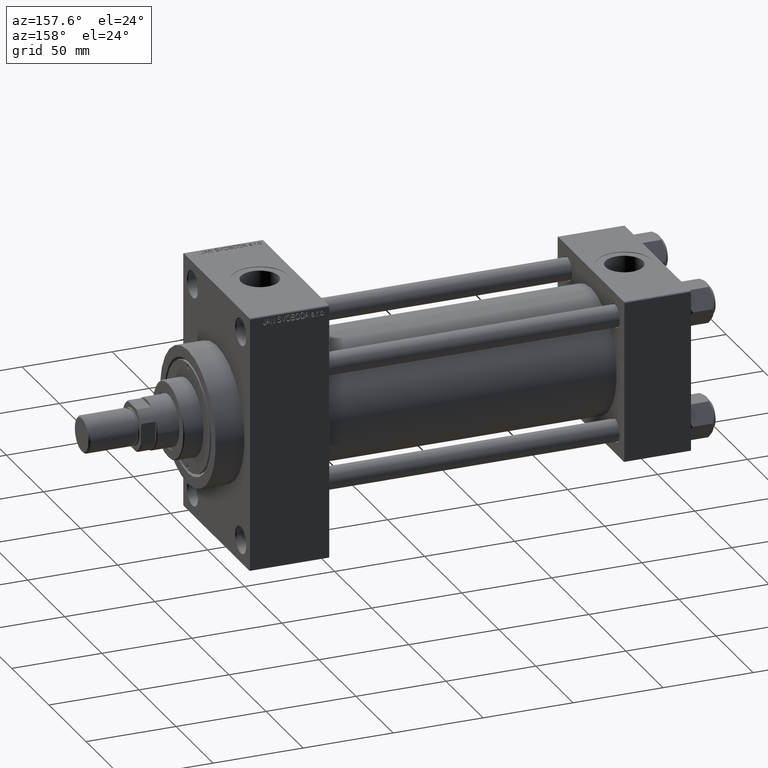
[diagram: clean part render]
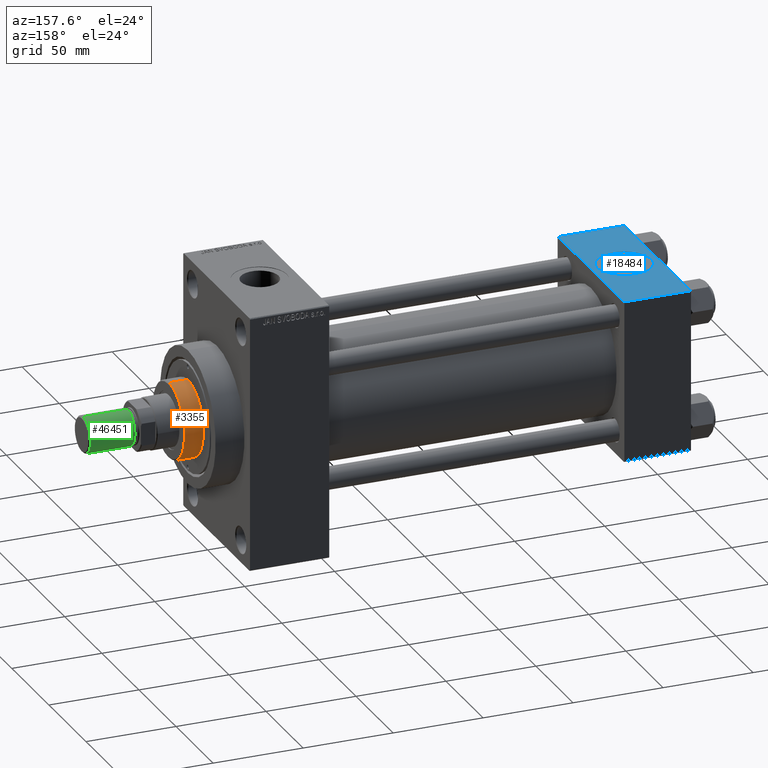
[diagram: same view with three faces highlighted in distinct colors, each labeled with its STEP entity id]
A machine part, auxiliary view with three faces highlighted in distinct colors.
Their STEP definitions:

[orange] entity #3355 — the highlighted cylindrical surface (partial cylindrical patch) has radius 21 mm, axis along (-1, 0, 0).
#1698 = DIRECTION ( 'NONE',  ( 0.000000000000000000, 0.000000000000000000, -1.000000000000000000 ) ) ;
#3355 = ADVANCED_FACE ( 'NONE', ( #30590 ), #45104, .T. ) ;
#5081 = LINE ( 'NONE', #16214, #28942 ) ;
#5306 = VERTEX_POINT ( 'NONE', #24798 ) ;
#7102 = VERTEX_POINT ( 'NONE', #25761 ) ;
#11459 = CARTESIAN_POINT ( 'NONE',  ( 0.000000000000000000, 0.000000000000000000, 54.26000000000000512 ) ) ;
#11886 = CARTESIAN_POINT ( 'NONE',  ( 21.00000000000000000, 2.571758278209441661E-15, 43.25999999999999801 ) ) ;
#14176 = ORIENTED_EDGE ( 'NONE', *, *, #47118, .T. ) ;
#15579 = DIRECTION ( 'NONE',  ( -0.000000000000000000, -0.000000000000000000, -1.000000000000000000 ) ) ;
#15851 = ORIENTED_EDGE ( 'NONE', *, *, #42114, .T. ) ;
#16214 = CARTESIAN_POINT ( 'NONE',  ( -21.00000000000000000, 0.000000000000000000, 54.26000000000000512 ) ) ;
#16363 = EDGE_CURVE ( 'NONE', #16559, #5306, #25071, .T. ) ;
#16558 = CARTESIAN_POINT ( 'NONE',  ( 21.00000000000000000, 2.571758278209441661E-15, 54.26000000000000512 ) ) ;
#16559 = VERTEX_POINT ( 'NONE', #45221 ) ;
#18691 = EDGE_CURVE ( 'NONE', #16559, #24418, #27452, .T. ) ;
#19231 = DIRECTION ( 'NONE',  ( -0.000000000000000000, -0.000000000000000000, -1.000000000000000000 ) ) ;
#19875 = CARTESIAN_POINT ( 'NONE',  ( 0.000000000000000000, 0.000000000000000000, 43.25999999999999801 ) ) ;
#20591 = DIRECTION ( 'NONE',  ( 0.000000000000000000, 0.000000000000000000, 1.000000000000000000 ) ) ;
#22785 = CIRCLE ( 'NONE', #42890, 21.00000000000000000 ) ;
#24418 = VERTEX_POINT ( 'NONE', #11886 ) ;
#24798 = CARTESIAN_POINT ( 'NONE',  ( -21.00000000000000000, 0.000000000000000000, 53.76000000000001933 ) ) ;
#25071 = CIRCLE ( 'NONE', #43605, 21.00000000000000000 ) ;
#25761 = CARTESIAN_POINT ( 'NONE',  ( -21.00000000000000000, 0.000000000000000000, 43.25999999999999801 ) ) ;
#27452 = LINE ( 'NONE', #16558, #42362 ) ;
#28769 = EDGE_LOOP ( 'NONE', ( #47849, #36724, #15851, #14176 ) ) ;
#28942 = VECTOR ( 'NONE', #30977, 1000.000000000000000 ) ;
#30112 = DIRECTION ( 'NONE',  ( -1.000000000000000000, 0.000000000000000000, 0.000000000000000000 ) ) ;
#30590 = FACE_OUTER_BOUND ( 'NONE', #28769, .T. ) ;
#30977 = DIRECTION ( 'NONE',  ( -0.000000000000000000, -0.000000000000000000, -1.000000000000000000 ) ) ;
#31474 = DIRECTION ( 'NONE',  ( 1.000000000000000000, 0.000000000000000000, 0.000000000000000000 ) ) ;
#31617 = AXIS2_PLACEMENT_3D ( 'NONE', #11459, #15579, #30112 ) ;
#35363 = DIRECTION ( 'NONE',  ( 1.000000000000000000, 0.000000000000000000, 0.000000000000000000 ) ) ;
#36724 = ORIENTED_EDGE ( 'NONE', *, *, #16363, .T. ) ;
#42114 = EDGE_CURVE ( 'NONE', #5306, #7102, #5081, .T. ) ;
#42362 = VECTOR ( 'NONE', #19231, 1000.000000000000000 ) ;
#42840 = CARTESIAN_POINT ( 'NONE',  ( 0.000000000000000000, 0.000000000000000000, 53.76000000000001933 ) ) ;
#42890 = AXIS2_PLACEMENT_3D ( 'NONE', #19875, #20591, #35363 ) ;
#43605 = AXIS2_PLACEMENT_3D ( 'NONE', #42840, #1698, #31474 ) ;
#45104 = CYLINDRICAL_SURFACE ( 'NONE', #31617, 21.00000000000000000 ) ;
#45221 = CARTESIAN_POINT ( 'NONE',  ( 21.00000000000000000, 2.571758278209441661E-15, 53.76000000000001933 ) ) ;
#47118 = EDGE_CURVE ( 'NONE', #7102, #24418, #22785, .T. ) ;
#47849 = ORIENTED_EDGE ( 'NONE', *, *, #18691, .F. ) ;

[blue] entity #18484 — the highlighted planar face has unit normal (0, 0, -1).
#231 = DIRECTION ( 'NONE',  ( 0.000000000000000000, -1.000000000000000000, -1.541976423090495387E-16 ) ) ;
#2199 = EDGE_CURVE ( 'NONE', #45430, #42460, #4737, .T. ) ;
#2423 = ORIENTED_EDGE ( 'NONE', *, *, #32910, .T. ) ;
#3589 = CARTESIAN_POINT ( 'NONE',  ( 33.50000000000000000, -8.673617379884038628E-15, 45.00000000000000711 ) ) ;
#3873 = CARTESIAN_POINT ( 'NONE',  ( 0.000000000000000000, 44.99999999999998579, 45.00000000000001421 ) ) ;
#4737 = LINE ( 'NONE', #19258, #43114 ) ;
#5293 = LINE ( 'NONE', #34346, #32057 ) ;
#6516 = CIRCLE ( 'NONE', #26613, 15.00000000000000355 ) ;
#6815 = AXIS2_PLACEMENT_3D ( 'NONE', #26260, #41023, #40542 ) ;
#8364 = DIRECTION ( 'NONE',  ( -1.000000000000000000, 0.000000000000000000, 0.000000000000000000 ) ) ;
#9308 = EDGE_CURVE ( 'NONE', #45430, #44677, #11658, .T. ) ;
#10473 = ORIENTED_EDGE ( 'NONE', *, *, #16738, .F. ) ;
#11658 = LINE ( 'NONE', #27148, #38628 ) ;
#12897 = ORIENTED_EDGE ( 'NONE', *, *, #23455, .F. ) ;
#14017 = EDGE_LOOP ( 'NONE', ( #12897, #10473 ) ) ;
#14128 = VECTOR ( 'NONE', #231, 1000.000000000000000 ) ;
#15121 = FACE_OUTER_BOUND ( 'NONE', #25971, .T. ) ;
#16664 = DIRECTION ( 'NONE',  ( 1.000000000000000000, 0.000000000000000000, 0.000000000000000000 ) ) ;
#16738 = EDGE_CURVE ( 'NONE', #45402, #22561, #6516, .T. ) ;
#18484 = ADVANCED_FACE ( 'NONE', ( #33523, #15121 ), #33045, .F. ) ;
#18539 = AXIS2_PLACEMENT_3D ( 'NONE', #32005, #35879, #28358 ) ;
#19258 = CARTESIAN_POINT ( 'NONE',  ( 0.000000000000000000, 44.49999999999998579, 45.00000000000001421 ) ) ;
#19643 = DIRECTION ( 'NONE',  ( 0.000000000000000000, -1.000000000000000000, -1.541976423090495387E-16 ) ) ;
#20855 = CARTESIAN_POINT ( 'NONE',  ( 0.000000000000000000, -44.49999999999995737, 45.00000000000000000 ) ) ;
#22561 = VERTEX_POINT ( 'NONE', #3589 ) ;
#22700 = CARTESIAN_POINT ( 'NONE',  ( 0.000000000000000000, 44.49999999999998579, 45.00000000000001421 ) ) ;
#22826 = CARTESIAN_POINT ( 'NONE',  ( 3.499999999999997780, -6.836647181163008250E-15, 45.00000000000000711 ) ) ;
#23455 = EDGE_CURVE ( 'NONE', #22561, #45402, #30133, .T. ) ;
#25357 = DIRECTION ( 'NONE',  ( 1.000000000000000000, 0.000000000000000000, 0.000000000000000000 ) ) ;
#25590 = DIRECTION ( 'NONE',  ( 0.000000000000000000, 0.000000000000000000, 1.000000000000000000 ) ) ;
#25971 = EDGE_LOOP ( 'NONE', ( #2423, #29340, #47011, #42346 ) ) ;
#26260 = CARTESIAN_POINT ( 'NONE',  ( 37.00000000000000000, 44.99999999999998579, 45.00000000000001421 ) ) ;
#26613 = AXIS2_PLACEMENT_3D ( 'NONE', #32626, #25590, #25357 ) ;
#27148 = CARTESIAN_POINT ( 'NONE',  ( 37.00000000000000000, 44.99999999999998579, 45.00000000000001421 ) ) ;
#28358 = DIRECTION ( 'NONE',  ( 1.000000000000000000, 0.000000000000000000, 0.000000000000000000 ) ) ;
#29340 = ORIENTED_EDGE ( 'NONE', *, *, #46445, .T. ) ;
#30133 = CIRCLE ( 'NONE', #18539, 15.00000000000000355 ) ;
#30367 = VERTEX_POINT ( 'NONE', #20855 ) ;
#32005 = CARTESIAN_POINT ( 'NONE',  ( 18.50000000000000000, -8.673617379884038628E-15, 45.00000000000000711 ) ) ;
#32057 = VECTOR ( 'NONE', #16664, 1000.000000000000000 ) ;
#32626 = CARTESIAN_POINT ( 'NONE',  ( 18.50000000000000000, -8.673617379884038628E-15, 45.00000000000000711 ) ) ;
#32910 = EDGE_CURVE ( 'NONE', #42460, #30367, #33175, .T. ) ;
#33045 = PLANE ( 'NONE',  #6815 ) ;
#33175 = LINE ( 'NONE', #3873, #14128 ) ;
#33523 = FACE_BOUND ( 'NONE', #14017, .T. ) ;
#34346 = CARTESIAN_POINT ( 'NONE',  ( 37.00000000000000000, -44.49999999999998579, 45.00000000000000000 ) ) ;
#35879 = DIRECTION ( 'NONE',  ( 0.000000000000000000, 0.000000000000000000, 1.000000000000000000 ) ) ;
#37358 = CARTESIAN_POINT ( 'NONE',  ( 37.00000000000000000, 44.49999999999998579, 45.00000000000001421 ) ) ;
#38628 = VECTOR ( 'NONE', #19643, 1000.000000000000000 ) ;
#40542 = DIRECTION ( 'NONE',  ( 0.000000000000000000, 1.000000000000000000, 1.541976423090495633E-16 ) ) ;
#41023 = DIRECTION ( 'NONE',  ( 0.000000000000000000, 1.541976423090495633E-16, -1.000000000000000000 ) ) ;
#42346 = ORIENTED_EDGE ( 'NONE', *, *, #2199, .T. ) ;
#42460 = VERTEX_POINT ( 'NONE', #22700 ) ;
#43114 = VECTOR ( 'NONE', #8364, 1000.000000000000000 ) ;
#44677 = VERTEX_POINT ( 'NONE', #46981 ) ;
#45402 = VERTEX_POINT ( 'NONE', #22826 ) ;
#45430 = VERTEX_POINT ( 'NONE', #37358 ) ;
#46445 = EDGE_CURVE ( 'NONE', #30367, #44677, #5293, .T. ) ;
#46981 = CARTESIAN_POINT ( 'NONE',  ( 37.00000000000000000, -44.49999999999995737, 45.00000000000000000 ) ) ;
#47011 = ORIENTED_EDGE ( 'NONE', *, *, #9308, .F. ) ;

[green] entity #46451 — the highlighted cylindrical surface (edge-blend (fillet) strip) has radius 10 mm, axis along (1, -0, -0).
#389 = DIRECTION ( 'NONE',  ( 1.000000000000000000, 0.000000000000000000, 0.000000000000000000 ) ) ;
#1310 = ORIENTED_EDGE ( 'NONE', *, *, #43613, .T. ) ;
#1469 = CARTESIAN_POINT ( 'NONE',  ( -10.00000000000000000, 0.000000000000000000, 25.50000000000000000 ) ) ;
#2840 = CARTESIAN_POINT ( 'NONE',  ( 0.000000000000000000, 0.000000000000000000, 25.50000000000000000 ) ) ;
#2928 = DIRECTION ( 'NONE',  ( -0.000000000000000000, -0.000000000000000000, -1.000000000000000000 ) ) ;
#4891 = CARTESIAN_POINT ( 'NONE',  ( -10.00000000000000000, 0.000000000000000000, 0.8000000000000055955 ) ) ;
#4986 = DIRECTION ( 'NONE',  ( -0.000000000000000000, -0.000000000000000000, 1.000000000000000000 ) ) ;
#5357 = ORIENTED_EDGE ( 'NONE', *, *, #39422, .T. ) ;
#6235 = DIRECTION ( 'NONE',  ( 0.000000000000000000, 0.000000000000000000, 1.000000000000000000 ) ) ;
#6251 = CYLINDRICAL_SURFACE ( 'NONE', #9643, 10.00000000000000000 ) ;
#7152 = EDGE_LOOP ( 'NONE', ( #7221, #1310, #5357, #41183 ) ) ;
#7221 = ORIENTED_EDGE ( 'NONE', *, *, #11423, .F. ) ;
#9623 = DIRECTION ( 'NONE',  ( -0.000000000000000000, -0.000000000000000000, -1.000000000000000000 ) ) ;
#9643 = AXIS2_PLACEMENT_3D ( 'NONE', #24171, #9623, #13262 ) ;
#11423 = EDGE_CURVE ( 'NONE', #14943, #36605, #12390, .T. ) ;
#12390 = CIRCLE ( 'NONE', #39457, 10.00000000000000000 ) ;
#13262 = DIRECTION ( 'NONE',  ( -1.000000000000000000, 0.000000000000000000, 0.000000000000000000 ) ) ;
#14943 = VERTEX_POINT ( 'NONE', #42669 ) ;
#16245 = DIRECTION ( 'NONE',  ( -0.000000000000000000, -0.000000000000000000, -1.000000000000000000 ) ) ;
#18996 = VERTEX_POINT ( 'NONE', #4891 ) ;
#20749 = DIRECTION ( 'NONE',  ( 1.000000000000000000, 0.000000000000000000, 0.000000000000000000 ) ) ;
#21450 = CARTESIAN_POINT ( 'NONE',  ( 10.00000000000000000, 1.224646799147353256E-15, 0.8000000000000055955 ) ) ;
#22451 = VECTOR ( 'NONE', #16245, 1000.000000000000000 ) ;
#24171 = CARTESIAN_POINT ( 'NONE',  ( 0.000000000000000000, 0.000000000000000000, 25.50000000000000000 ) ) ;
#24610 = EDGE_CURVE ( 'NONE', #36605, #18996, #38276, .T. ) ;
#29531 = LINE ( 'NONE', #44286, #35225 ) ;
#29933 = CARTESIAN_POINT ( 'NONE',  ( 0.000000000000000000, 0.000000000000000000, 0.8000000000000055955 ) ) ;
#35225 = VECTOR ( 'NONE', #2928, 1000.000000000000000 ) ;
#36605 = VERTEX_POINT ( 'NONE', #46125 ) ;
#38276 = LINE ( 'NONE', #1469, #22451 ) ;
#38284 = AXIS2_PLACEMENT_3D ( 'NONE', #29933, #4986, #389 ) ;
#39406 = FACE_OUTER_BOUND ( 'NONE', #7152, .T. ) ;
#39422 = EDGE_CURVE ( 'NONE', #41332, #18996, #43693, .T. ) ;
#39457 = AXIS2_PLACEMENT_3D ( 'NONE', #2840, #6235, #20749 ) ;
#41183 = ORIENTED_EDGE ( 'NONE', *, *, #24610, .F. ) ;
#41332 = VERTEX_POINT ( 'NONE', #21450 ) ;
#42669 = CARTESIAN_POINT ( 'NONE',  ( 10.00000000000000000, 1.224646799147353256E-15, 25.50000000000000000 ) ) ;
#43613 = EDGE_CURVE ( 'NONE', #14943, #41332, #29531, .T. ) ;
#43693 = CIRCLE ( 'NONE', #38284, 10.00000000000000000 ) ;
#44286 = CARTESIAN_POINT ( 'NONE',  ( 10.00000000000000000, 1.224646799147353256E-15, 25.50000000000000000 ) ) ;
#46125 = CARTESIAN_POINT ( 'NONE',  ( -10.00000000000000000, 0.000000000000000000, 25.50000000000000000 ) ) ;
#46451 = ADVANCED_FACE ( 'NONE', ( #39406 ), #6251, .T. ) ;